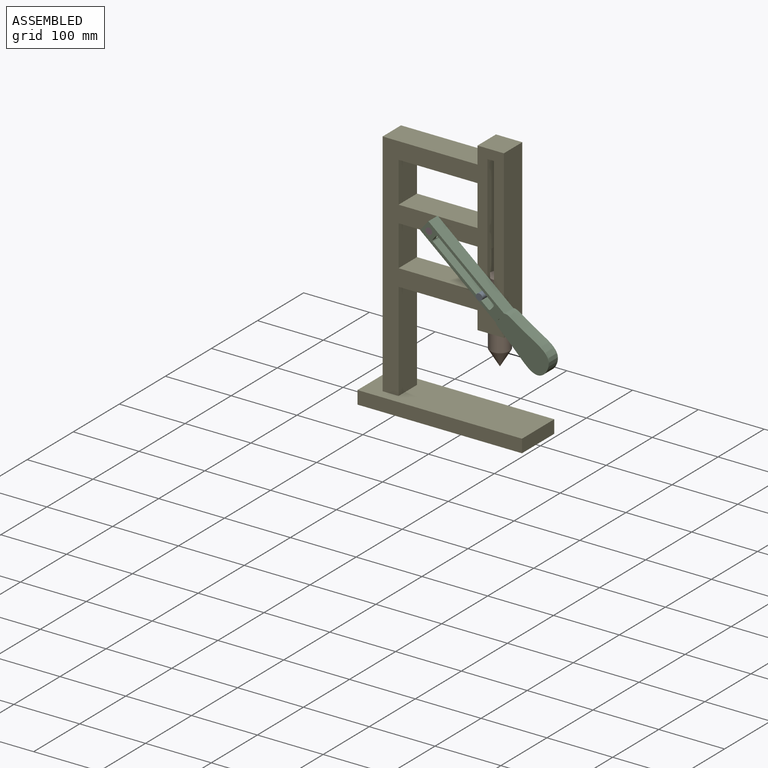
[diagram: assembled view]
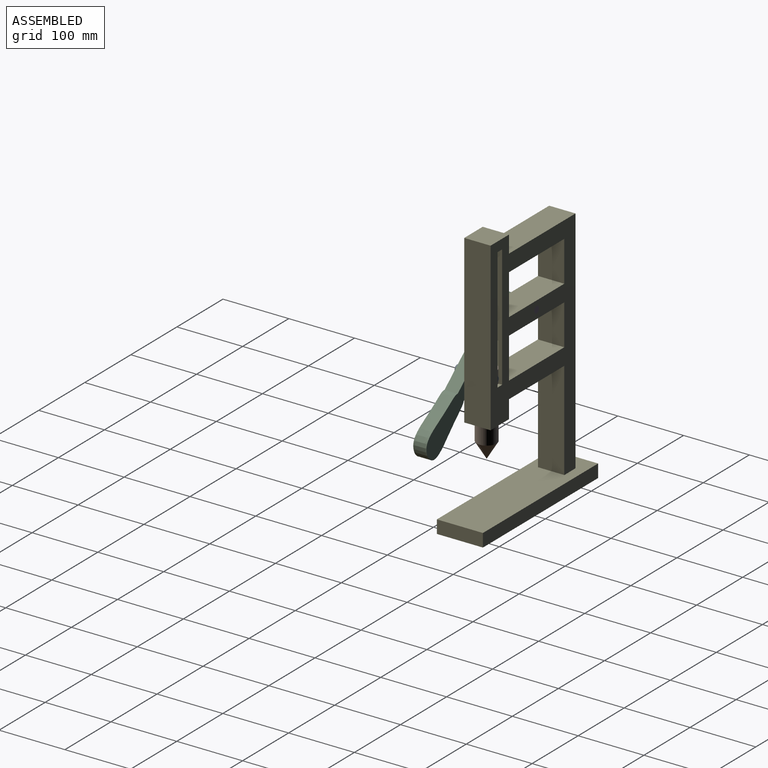
[diagram: assembled view, second angle]
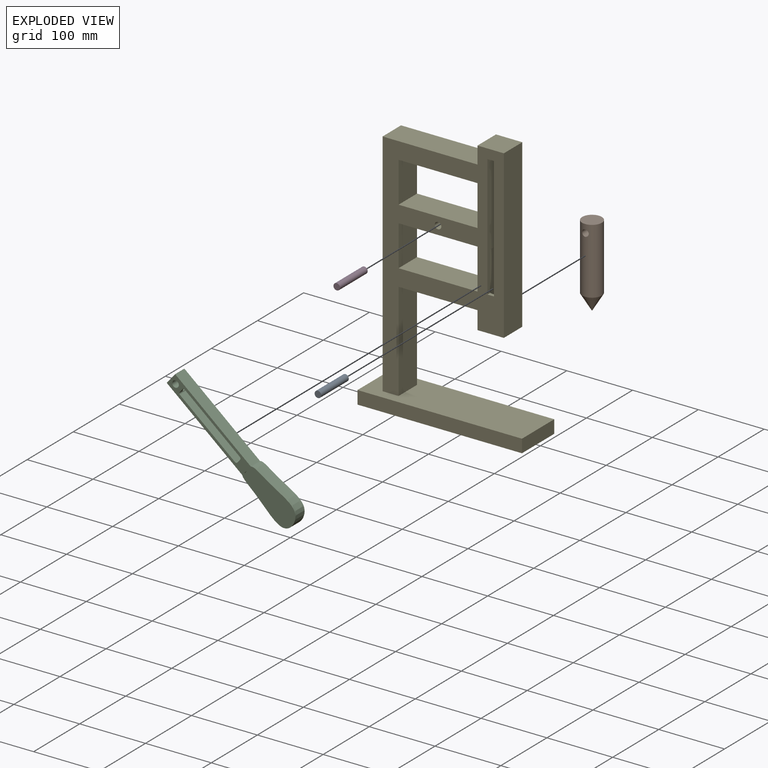
[diagram: exploded view]
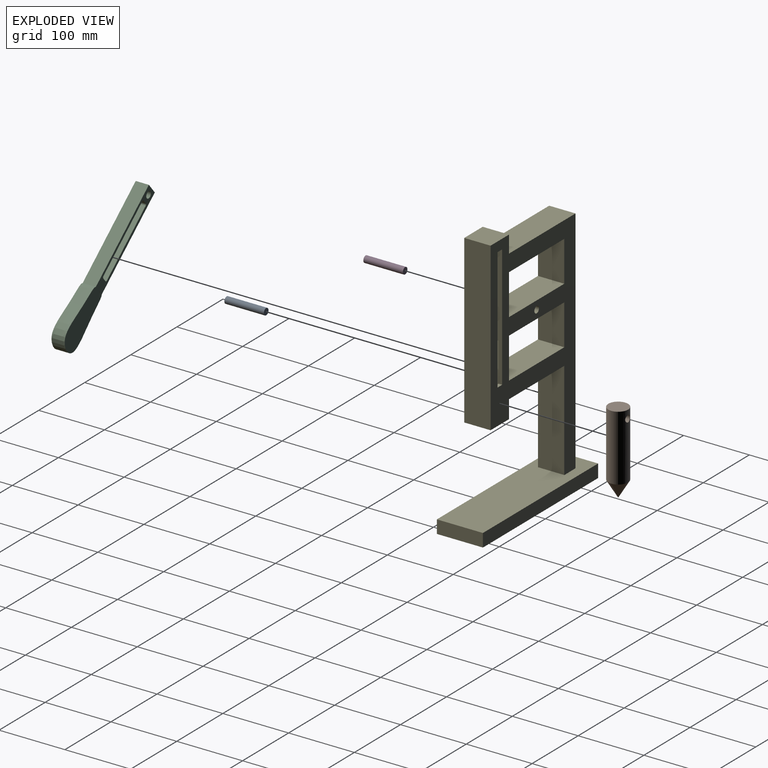
[diagram: exploded view, second angle]
ASSEMBLY  parts=5 mates=4
PART A: 3 faces, bbox 10x60x10 mm
  f0: cylinder r=5mm len=60mm, axis (0,1,0), area 1885mm2, adj f1,f2
  f1: plane 10x10mm, normal (0,-1,0), area 78.5mm2, adj f0
  f2: plane 10x10mm, normal (0,1,0), area 78.5mm2, adj f0
PART B: 4 faces, bbox 30x30x124.9 mm
  f0: cylinder r=15mm len=100mm, axis (0,0,-1), area 9265.3mm2, adj f1,f2,f3
  f1: plane 30x30mm, normal (0,0,1), area 706.9mm2, adj f0
  f2: cone r=15mm half-angle=31.1deg, axis (0,0,1), area 1370.2mm2, adj f0
  f3: cylinder r=5mm len=30mm, axis (0,-1,0), area 915.7mm2, adj f0
PART C: 23 faces, bbox 39.4x20x240.6 mm
  f0: plane 6.73x6.45mm, normal (0,0,-1), area 36.4mm2, adj f2,f5,f7,f20
  f1: plane 6.73x6.45mm, normal (0,0,1), area 36.4mm2, adj f3,f4,f7,f21
  f2: cylinder r=2.5mm len=20mm, axis (0,-1,0), area 68.3mm2, adj f0,f7,f8,f13,f14,f20
  f3: cylinder r=2.5mm len=20mm, axis (0,1,0), area 68.3mm2, adj f1,f7,f8,f14,f15,f21
  f4: cylinder r=2.5mm len=20mm, axis (0,-1,0), area 70.9mm2, adj f1,f7,f8,f15,f16,f21
  f5: cylinder r=2.5mm len=20mm, axis (0,1,0), area 70.9mm2, adj f0,f7,f8,f13,f16,f20
  f6: plane 20x5.68mm, normal (0,0,-1), area 113.5mm2, adj f7,f8,f18
  f7: plane 240.57x39.38mm, normal (0,-1,0), area 4348.6mm2, adj f0,f1,f2,f3,f4,f5,f6,f9
  f8: plane 240.57x39.38mm, normal (0,1,0), area 4348.6mm2, adj f2,f3,f4,f5,f6,f9,f10,f11
  f9: plane 150x20mm, normal (1,0,0), area 3000mm2, adj f7,f8,f10,f17
  f10: plane 20x20mm, normal (0,0,1), area 400mm2, adj f7,f8,f9,f12
  f11: cylinder r=5mm len=20mm, axis (0,1,0), area 628.3mm2, adj f7,f8
  f12: plane 150x20mm, normal (-1,0,0), area 3000mm2, adj f7,f8,f10,f17
  f13: plane 6.73x6.45mm, normal (0,0,-1), area 36.4mm2, adj f2,f5,f8,f20
  f14: plane 109.17x20mm, normal (1,0,0), area 2183.4mm2, adj f2,f3,f7,f8
  f15: plane 6.73x6.45mm, normal (0,0,1), area 36.4mm2, adj f3,f4,f8,f21
  f16: plane 109.17x20mm, normal (-1,0,0), area 2183.4mm2, adj f4,f5,f7,f8
  f17: extruded ~89.6x37.33mm, area 4059.2mm2, adj f7,f8,f9,f12
  f18: extruded ~20x5.68mm, area 114.3mm2, adj f6,f7,f8
  f19: plane 10x10mm, normal (0,0,-1), area 78.5mm2, adj f20
  f20: cylinder r=5mm len=10mm, axis (0,0,-1), area 161.5mm2, adj f0,f2,f5,f13,f19
  f21: cylinder r=5mm len=10mm, axis (0,0,-1), area 32.2mm2, adj f1,f3,f4,f15,f22
  f22: plane 10x10mm, normal (0,0,1), area 78.5mm2, adj f21
PART D: same geometry as A
PART E: 34 faces, bbox 250x70x396.1 mm
  f0: plane 10x5.86mm, normal (0,0,1), area 52.8mm2, adj f2,f21,f23,f24
  f1: plane 40x10mm, normal (0,0,-1), area 400mm2, adj f2,f21,f22,f23
  f2: plane 185.98x40mm, normal (-1,0,0), area 5768.3mm2, adj f0,f1,f3,f22,f23,f24,f25
  f3: plane 10x5.86mm, normal (0,0,1), area 52.8mm2, adj f2,f21,f22,f24
  f4: plane 350x40mm, normal (-1,0,0), area 14000mm2, adj f18,f22,f23,f28
  f5: plane 150x40mm, normal (1,0,0), area 6000mm2, adj f6,f22,f23,f28
  f6: plane 120x40mm, normal (0,0,-1), area 4800.1mm2, adj f5,f7,f22,f23
  f7: plane 40x27.42mm, normal (-1,0,0), area 1096.8mm2, adj f6,f8,f22,f23
  f8: plane 40x40mm, normal (0,0,-1), area 893.1mm2, adj f7,f9,f22,f23,f24
  f9: plane 253.53x40mm, normal (1,0,0), area 10141.2mm2, adj f8,f10,f22,f23
  f10: plane 40x40mm, normal (0,0,1), area 1600mm2, adj f9,f11,f22,f23
  f11: plane 40x26.11mm, normal (-1,0,0), area 1044.4mm2, adj f10,f18,f22,f23
  f12: plane 120x40mm, normal (0,0,1), area 4800mm2, adj f13,f19,f22,f23
  f13: plane 61.7x40mm, normal (1,0,0), area 2468.1mm2, adj f12,f14,f22,f23
  f14: plane 120x40mm, normal (0,0,-1), area 4800mm2, adj f13,f19,f22,f23
  f15: plane 120x40mm, normal (0,0,1), area 4800mm2, adj f16,f20,f22,f23
  f16: plane 61.75x40mm, normal (1,0,0), area 2470mm2, adj f15,f17,f22,f23
  f17: plane 120x40mm, normal (0,0,-1), area 4800mm2, adj f16,f20,f22,f23
  f18: plane 144.3x40mm, normal (0,0,1), area 5772.1mm2, adj f4,f11,f22,f23
  f19: plane 61.7x40mm, normal (-1,0,0), area 2468.1mm2, adj f12,f14,f22,f23
  f20: plane 61.75x40mm, normal (-1,0,0), area 2470mm2, adj f15,f17,f22,f23
  f21: plane 185.98x40mm, normal (1,0,0), area 5768.3mm2, adj f0,f1,f3,f22,f23,f24,f26
  f22: plane 376.11x184.3mm, normal (0,-1,0), area 25894mm2, adj f1,f2,f3,f4,f5,f6,f7,f8
  f23: plane 376.11x184.3mm, normal (0,1,0), area 25894mm2, adj f0,f1,f2,f4,f5,f6,f7,f8
  f24: cylinder r=15mm len=112mm, axis (0,0,-1), area 9351.1mm2, adj f0,f2,f3,f8,f21,f25,f26
  f25: plane 28.28x10mm, normal (0,0,-1), area 206.3mm2, adj f2,f24
  f26: plane 28.28x10mm, normal (0,0,-1), area 206.3mm2, adj f21,f24
  f27: cylinder r=5mm len=40mm, axis (0,-1,0), area 1256.6mm2, adj f22,f23
  f28: plane 250x70mm, normal (0,0,1), area 16528mm2, adj f4,f5,f22,f23,f29,f31,f32,f33
  f29: plane 70x20mm, normal (-1,0,0), area 1400mm2, adj f28,f30,f32,f33
  f30: plane 250x70mm, normal (0,0,-1), area 17500mm2, adj f29,f31,f32,f33
  f31: plane 70x20mm, normal (1,0,0), area 1400mm2, adj f28,f30,f32,f33
  f32: plane 250x20mm, normal (0,-1,0), area 5000mm2, adj f28,f29,f30,f31
  f33: plane 250x20mm, normal (0,1,0), area 5000mm2, adj f28,f29,f30,f31
PLACE A t=(422.72,-78.32,139.59)mm
PLACE B t=(422.72,-63.13,102.11)mm
PLACE C rot(axis=(0,-1,0),50.1deg) t=(393.24,-93.13,164.46)mm
PLACE D t=(342.72,-73.13,206.7)mm
PLACE E t=(270.57,-63.13,206.7)mm fixed
MATE revolute E.f27 <-> C.f11  axis (0,-1,0) through (342.72,-83.13,206.7)mm
MATE slider B.f0 <-> E.f24  axis (0,0,-1) through (422.72,-63.13,102.11)mm
MATE revolute D.f0 <-> E.f27  axis (0,1,0) through (342.72,-43.13,206.7)mm
MATE fastened B.f3 <-> A.f0  axis (0,-1,0) through (422.72,-78.32,139.59)mm
